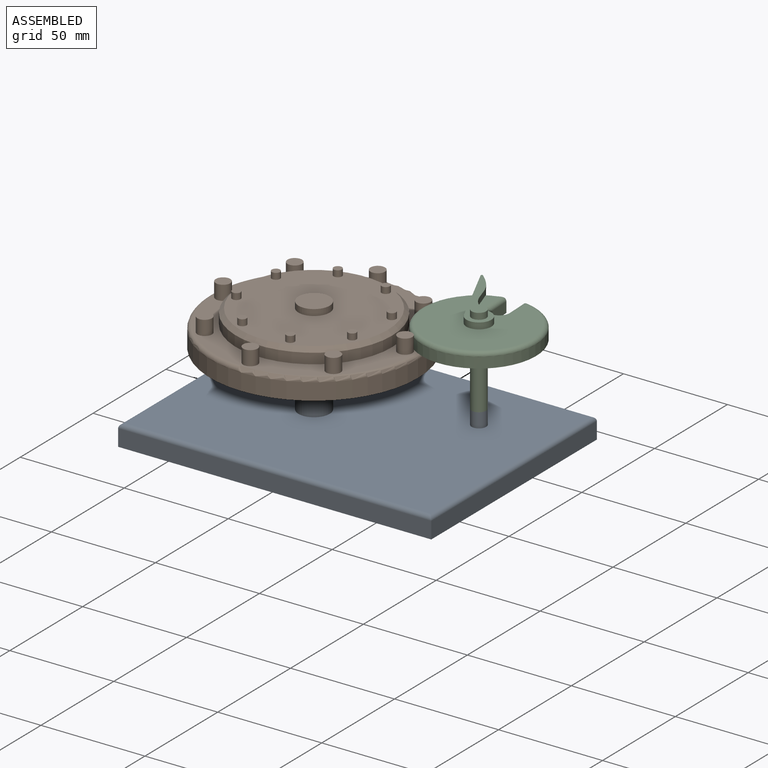
[diagram: assembled view]
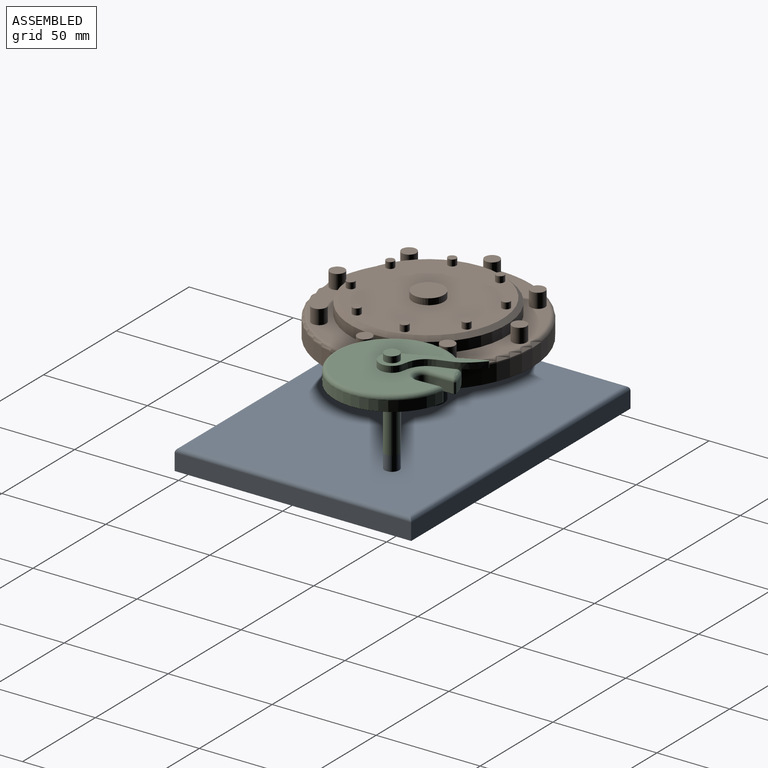
[diagram: assembled view, second angle]
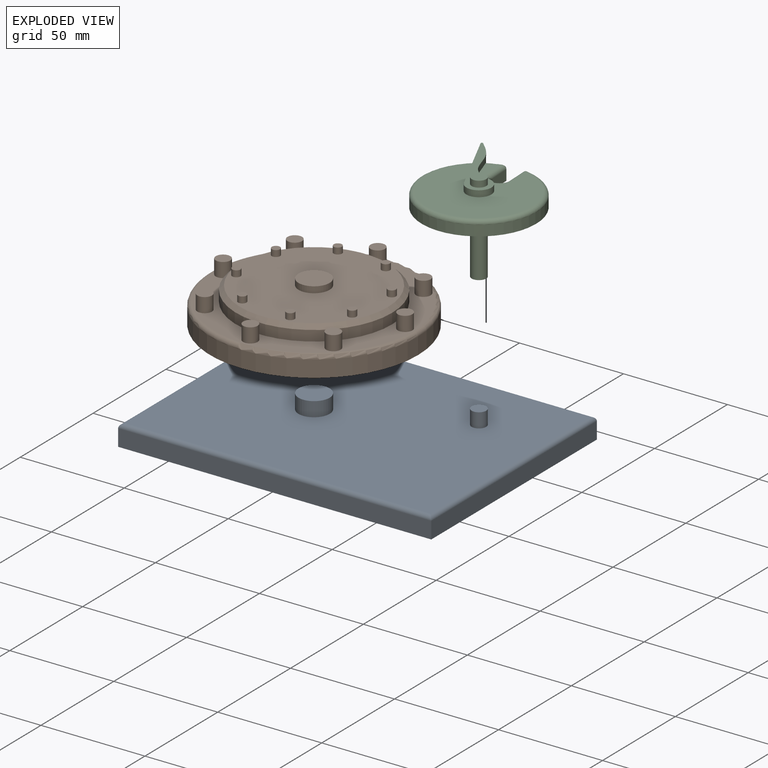
[diagram: exploded view]
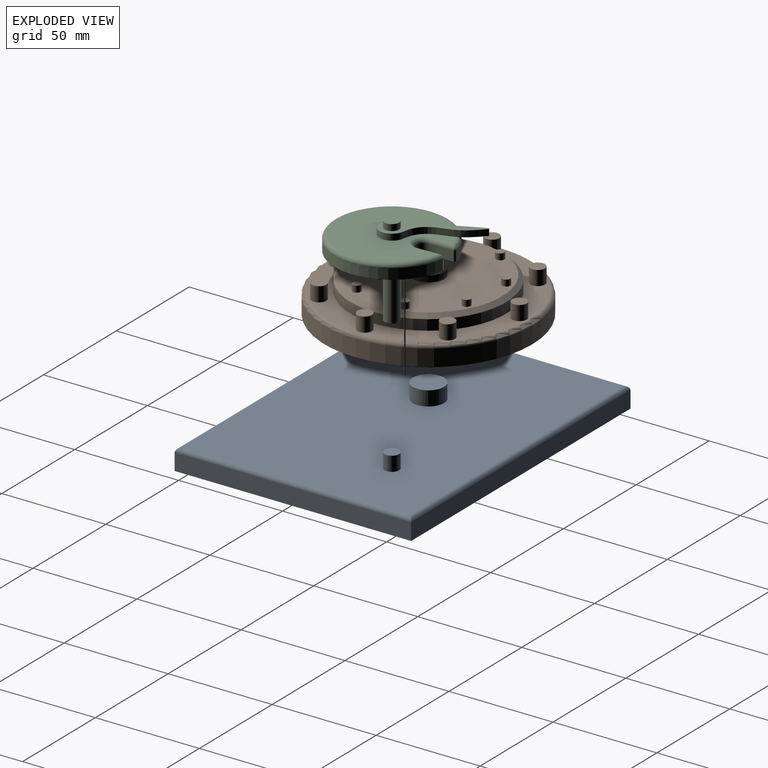
[diagram: exploded view, second angle]
ASSEMBLY  parts=3 mates=2
PART A: 14 faces, bbox 150.6x113.7x17 mm
  f0: plane 150.59x8mm, normal (0,1,0), area 1204.7mm2, adj f1,f3,f5,f6
  f1: plane 113.71x8mm, normal (-1,0,0), area 909.7mm2, adj f0,f2,f5,f7
  f2: plane 150.59x8mm, normal (0,-1,0), area 1204.7mm2, adj f1,f3,f5,f9
  f3: plane 113.71x8mm, normal (1,0,0), area 909.7mm2, adj f0,f2,f5,f8
  f4: plane 146.59x109.71mm, normal (0,0,1), area 15867.4mm2, adj f6,f7,f8,f9,f10,f12
  f5: plane 150.59x113.71mm, normal (0,0,-1), area 17123.9mm2, adj f0,f1,f2,f3
  f6: cylinder r=2mm len=150.59mm, axis (1,0,0), area 468.5mm2, adj f0,f4,f7,f8
  f7: cylinder r=2mm len=113.71mm, axis (0,1,0), area 352.7mm2, adj f1,f4,f6,f9
  f8: cylinder r=2mm len=113.71mm, axis (0,-1,0), area 352.7mm2, adj f3,f4,f6,f9
  f9: cylinder r=2mm len=150.59mm, axis (-1,0,0), area 468.5mm2, adj f2,f4,f7,f8
  f10: cylinder r=7.5mm len=15mm, axis (0,0,-1), area 329.9mm2, adj f4,f11
  f11: plane 15x15mm, normal (0,0,1), area 176.7mm2, adj f10
  f12: cylinder r=3.5mm len=7mm, axis (0,0,-1), area 153.9mm2, adj f4,f13
  f13: plane 7x7mm, normal (0,0,1), area 38.5mm2, adj f12
PART B: 43 faces, bbox 108.2x108.2x40 mm
  f0: cylinder r=50mm len=100mm, axis (0,0,-1), area 2513.3mm2, adj f2,f38
  f1: plane 96x96mm, normal (0,0,1), area 2512.5mm2, adj f3,f5,f10,f12,f14,f16,f18,f20
  f2: plane 100x100mm, normal (0,0,-1), area 7677.3mm2, adj f0,f41
  f3: cylinder r=37.5mm len=75mm, axis (0,0,-1), area 1178.1mm2, adj f1,f37
  f4: plane 71x71mm, normal (0,0,1), area 3681.9mm2, adj f8,f24,f26,f28,f30,f32,f34,f36
  f5: cylinder r=3.5mm len=7mm, axis (0,0,-1), area 153.9mm2, adj f1,f6
  f6: plane 7x7mm, normal (0,0,1), area 38.5mm2, adj f5
  f7: plane 4x4mm, normal (0,0,1), area 12.6mm2, adj f8
  f8: cylinder r=2mm len=4mm, axis (0,0,-1), area 37.7mm2, adj f4,f7
  f9: plane 7x7mm, normal (0,0,1), area 38.5mm2, adj f10
  f10: cylinder r=3.5mm len=7mm, axis (0,0,-1), area 153.9mm2, adj f1,f9
  f11: plane 7x7mm, normal (0,0,1), area 38.5mm2, adj f12
  f12: cylinder r=3.5mm len=7mm, axis (0,0,-1), area 153.9mm2, adj f1,f11
  f13: plane 7x7mm, normal (0,0,1), area 38.5mm2, adj f14
  f14: cylinder r=3.5mm len=7mm, axis (0,0,-1), area 153.9mm2, adj f1,f13
  f15: plane 7x7mm, normal (0,0,1), area 38.5mm2, adj f16
  f16: cylinder r=3.5mm len=7mm, axis (0,0,-1), area 153.9mm2, adj f1,f15
  f17: plane 7x7mm, normal (0,0,1), area 38.5mm2, adj f18
  f18: cylinder r=3.5mm len=7mm, axis (0,0,-1), area 153.9mm2, adj f1,f17
  f19: plane 7x7mm, normal (0,0,1), area 38.5mm2, adj f20
  f20: cylinder r=3.5mm len=7mm, axis (0,0,-1), area 153.9mm2, adj f1,f19
  f21: cylinder r=3.5mm len=7mm, axis (0,0,-1), area 153.9mm2, adj f1,f22
  f22: plane 7x7mm, normal (0,0,1), area 38.5mm2, adj f21
  f23: plane 4x4mm, normal (0,0,1), area 12.6mm2, adj f24
  f24: cylinder r=2mm len=4mm, axis (0,0,-1), area 37.7mm2, adj f4,f23
  f25: plane 4x4mm, normal (0,0,1), area 12.6mm2, adj f26
  f26: cylinder r=2mm len=4mm, axis (0,0,-1), area 37.7mm2, adj f4,f25
  f27: plane 4x4mm, normal (0,0,1), area 12.6mm2, adj f28
  f28: cylinder r=2mm len=4mm, axis (0,0,-1), area 37.7mm2, adj f4,f27
  f29: plane 4x4mm, normal (0,0,1), area 12.6mm2, adj f30
  f30: cylinder r=2mm len=4mm, axis (0,0,-1), area 37.7mm2, adj f4,f29
  f31: plane 4x4mm, normal (0,0,1), area 12.6mm2, adj f32
  f32: cylinder r=2mm len=4mm, axis (0,0,-1), area 37.7mm2, adj f4,f31
  f33: plane 4x4mm, normal (0,0,1), area 12.6mm2, adj f34
  f34: cylinder r=2mm len=4mm, axis (0,0,-1), area 37.7mm2, adj f4,f33
  f35: plane 4x4mm, normal (0,0,1), area 12.6mm2, adj f36
  f36: cylinder r=2mm len=4mm, axis (0,0,-1), area 37.7mm2, adj f4,f35
  f37: cone r=35.5mm half-angle=45deg, axis (0,0,-1), area 648.7mm2, adj f3,f4
  f38: torus R=48mm, axis (0,0,1), area 972.6mm2, adj f0,f1
  f39: plane 15x15mm, normal (0,0,1), area 176.7mm2, adj f40
  f40: cylinder r=7.5mm len=15mm, axis (0,0,1), area 141.4mm2, adj f4,f39
  f41: cylinder r=7.5mm len=20mm, axis (0,0,1), area 942.5mm2, adj f2,f42
  f42: plane 15x15mm, normal (0,0,-1), area 176.7mm2, adj f41
PART C: 25 faces, bbox 68.7x59.5x43.2 mm
  f0: plane 52.22x51mm, normal (0,0,1), area 1665.2mm2, adj f4,f5,f6,f18,f20,f21,f22,f24
  f1: plane 55x55mm, normal (0,0,-1), area 2212.4mm2, adj f2,f11,f13,f14,f15,f16,f17
  f2: cylinder r=27.5mm len=55mm, axis (0,0,-1), area 819.7mm2, adj f1,f3,f4,f6,f16,f17,f18,f24
  f3: plane 11.15x4.04mm, normal (0,0,-1), area 29.1mm2, adj f2,f4,f6,f8
  f4: plane 37.48x5mm, normal (0,-1,0), area 113.3mm2, adj f0,f2,f3,f5,f7,f8,f18
  f5: cylinder r=6mm len=12mm, axis (0,0,-1), area 74.3mm2, adj f0,f4,f6,f7
  f6: extruded ~32.67x8.35mm, area 107.3mm2, adj f0,f2,f3,f5,f7,f8,f24
  f7: plane 44.97x12mm, normal (0,0,1), area 196.6mm2, adj f4,f5,f6,f8,f10
  f8: cylinder r=0.5mm len=3mm, axis (0,0,-1), area 4.1mm2, adj f3,f4,f6,f7
  f9: plane 7x7mm, normal (0,0,1), area 38.5mm2, adj f10
  f10: cylinder r=3.5mm len=7mm, axis (0,0,-1), area 66mm2, adj f7,f9
  f11: cylinder r=3.5mm len=30.2mm, axis (0,0,-1), area 664.1mm2, adj f1,f12
  f12: plane 7x7mm, normal (0,0,-1), area 38.5mm2, adj f11
  f13: plane 10.19x5mm, normal (0.38,0.92,0), area 55.1mm2, adj f1,f14,f17,f22
  f14: cylinder r=4mm len=7.7mm, axis (0,0,1), area 62.8mm2, adj f1,f13,f15,f21
  f15: plane 10.19x5mm, normal (-0.38,-0.92,0), area 55.1mm2, adj f1,f14,f16,f20
  f16: cylinder r=1mm len=5mm, axis (0,0,-1), area 8.8mm2, adj f1,f2,f15,f19
  f17: cylinder r=1mm len=5mm, axis (0,0,-1), area 8.8mm2, adj f1,f2,f13,f23
  f18: torus R=25.5mm, axis (0,0,1), area 459.1mm2, adj f0,f2,f4,f19
  f19: bspline ~3.03x2.56mm, area 3.8mm2, adj f16,f18,f20
  f20: cylinder r=2mm len=10.95mm, axis (0.92,-0.38,0), area 33.2mm2, adj f0,f15,f19,f21
  f21: torus R=6mm, axis (0,0,1), area 46.7mm2, adj f0,f14,f20,f22
  f22: cylinder r=2mm len=10.95mm, axis (-0.92,0.38,0), area 33.2mm2, adj f0,f13,f21,f23
  f23: bspline ~2.79x2.56mm, area 3.8mm2, adj f17,f22,f24
  f24: torus R=25.5mm, axis (0,0,1), area 22mm2, adj f0,f2,f6,f23
PLACE A t=(-21.96,-22.67,-23.76)mm fixed
PLACE B t=(-41.81,-24.14,13.24)mm
PLACE C rot(axis=(0,0,-1),65.1deg) t=(19.64,1.31,23.44)mm
MATE revolute C.f5 <-> A.f12  axis (0,0,-1) through (19.64,1.31,-6.76)mm
MATE revolute B.f3 <-> A.f10  axis (0,0,-1) through (-41.81,-24.14,-6.76)mm
